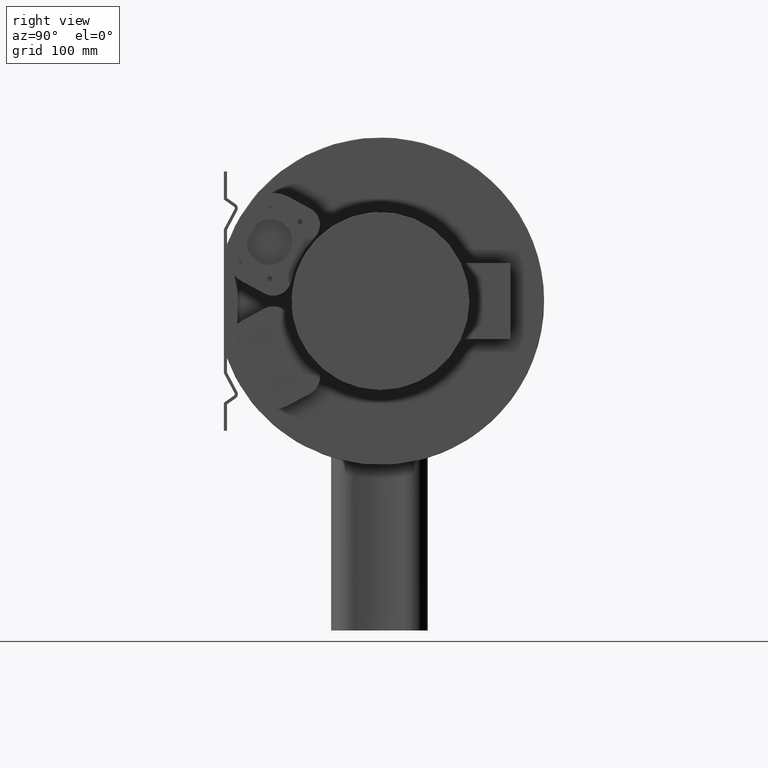
[diagram: clean part render]
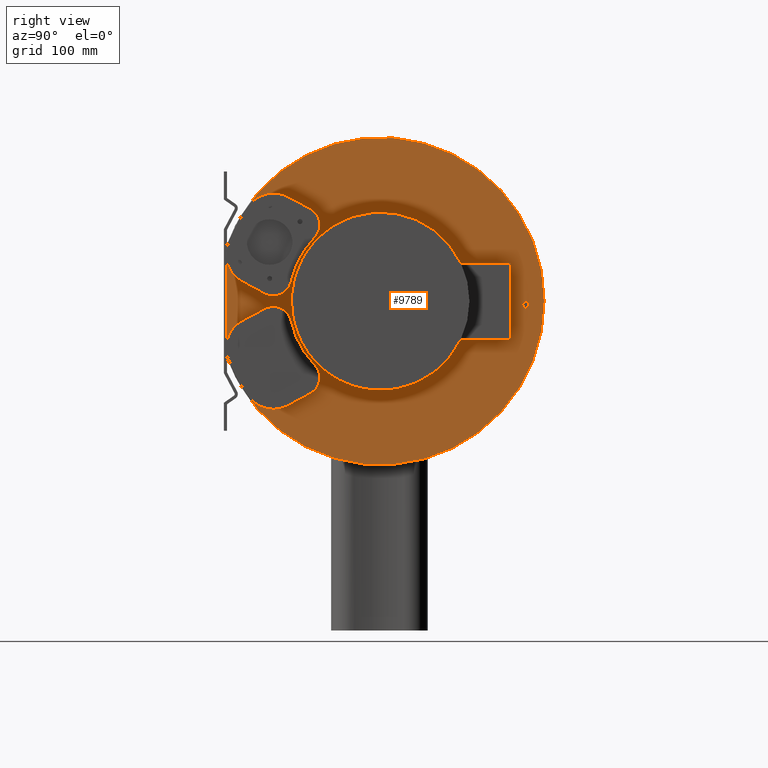
[diagram: same view with one face highlighted and labeled with its STEP entity id]
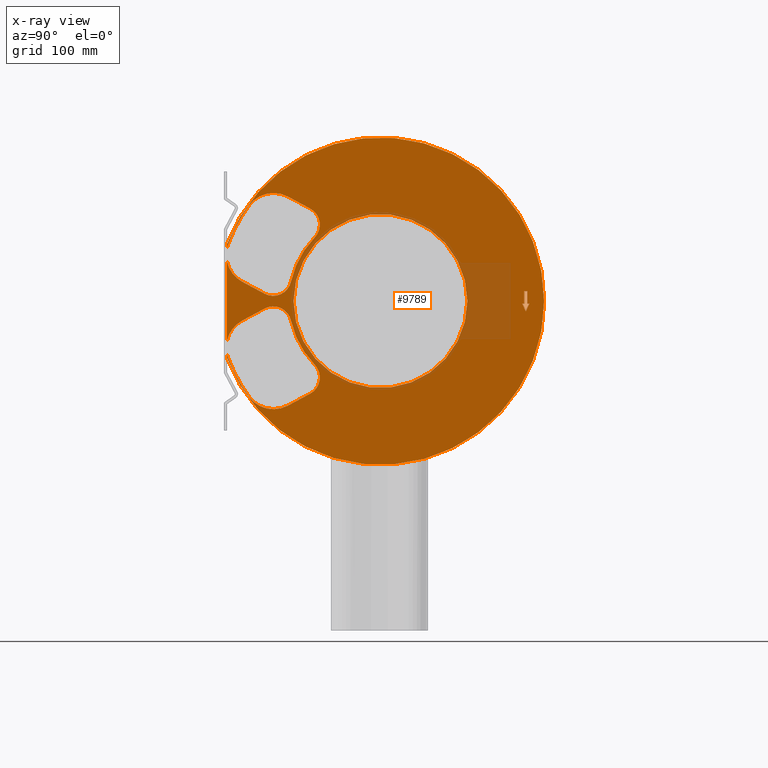
[diagram: x-ray of the same camera — body ghosted, the highlighted face saturated]
A machine part, right view. The second image highlights one B-rep face of the part: STEP entity #9789.
The next image is the same camera in x-ray: the body ghosted, the highlighted face saturated — about 10% of this face is hidden behind the body in this view.
In plain terms, the highlighted planar face has unit normal (1, 0, 0).
Its self-contained STEP definition (entity closure, byte-faithful):
#6342=CARTESIAN_POINT('',(155.0,141.5,-2.494225778216578));
#6343=VERTEX_POINT('',#6342);
#6350=CARTESIAN_POINT('',(155.0,139.5,-2.494225778216556));
#6351=VERTEX_POINT('',#6350);
#6352=CARTESIAN_POINT('',(155.0,139.5,-2.494225778216556));
#6353=DIRECTION('',(0.0,1.0,0.0));
#6354=VECTOR('',#6353,2.0);
#6355=LINE('',#6352,#6354);
#6356=EDGE_CURVE('',#6351,#6343,#6355,.T.);
#6380=CARTESIAN_POINT('',(155.0,141.5,10.000000000000007));
#6381=VERTEX_POINT('',#6380);
#6388=CARTESIAN_POINT('',(155.0,141.5,-2.494225778216578));
#6389=DIRECTION('',(0.0,0.0,1.0));
#6390=VECTOR('',#6389,12.494225778216585);
#6391=LINE('',#6388,#6390);
#6392=EDGE_CURVE('',#6343,#6381,#6391,.T.);
#6411=CARTESIAN_POINT('',(155.0,144.5,10.000000000000036));
#6412=VERTEX_POINT('',#6411);
#6419=CARTESIAN_POINT('',(155.0,141.5,10.000000000000005));
#6420=DIRECTION('',(0.0,1.0,0.0));
#6421=VECTOR('',#6420,3.0);
#6422=LINE('',#6419,#6421);
#6423=EDGE_CURVE('',#6381,#6412,#6422,.T.);
#6442=CARTESIAN_POINT('',(155.0,144.5,-2.494225778216564));
#6443=VERTEX_POINT('',#6442);
#6450=CARTESIAN_POINT('',(155.0,144.5,10.000000000000036));
#6451=DIRECTION('',(0.0,0.0,-1.0));
#6452=VECTOR('',#6451,12.494225778216599);
#6453=LINE('',#6450,#6452);
#6454=EDGE_CURVE('',#6412,#6443,#6453,.T.);
#6473=CARTESIAN_POINT('',(155.0,146.5,-2.494225778216564));
#6474=VERTEX_POINT('',#6473);
#6481=CARTESIAN_POINT('',(155.0,144.5,-2.494225778216564));
#6482=DIRECTION('',(0.0,1.0,0.0));
#6483=VECTOR('',#6482,2.0);
#6484=LINE('',#6481,#6483);
#6485=EDGE_CURVE('',#6443,#6474,#6484,.T.);
#6504=CARTESIAN_POINT('',(155.0,142.99999999999977,-9.999999999999989));
#6505=VERTEX_POINT('',#6504);
#6512=CARTESIAN_POINT('',(155.0,146.5,-2.494225778216562));
#6513=DIRECTION('',(0.0,-0.422618261740723,-0.906307787036639));
#6514=VECTOR('',#6513,8.281705541033814);
#6515=LINE('',#6512,#6514);
#6516=EDGE_CURVE('',#6474,#6505,#6515,.T.);
#6534=CARTESIAN_POINT('',(155.0,142.99999999999977,-9.999999999999991));
#6535=DIRECTION('',(0.0,-0.422618261740678,0.90630778703666));
#6536=VECTOR('',#6535,8.281705541033631);
#6537=LINE('',#6534,#6536);
#6538=EDGE_CURVE('',#6505,#6351,#6537,.T.);
#8478=CARTESIAN_POINT('',(155.0,-151.0,55.856960175075756));
#8479=VERTEX_POINT('',#8478);
#8501=CARTESIAN_POINT('',(155.0,-151.0,52.264140480517455));
#8502=VERTEX_POINT('',#8501);
#8509=CARTESIAN_POINT('',(155.0,-151.0,55.856960175075756));
#8510=DIRECTION('',(0.0,0.0,-1.0));
#8511=VECTOR('',#8510,3.592819694558294);
#8512=LINE('',#8509,#8511);
#8513=EDGE_CURVE('',#8479,#8502,#8512,.T.);
#8558=CARTESIAN_POINT('',(155.0,-151.0,-55.856960175075756));
#8559=VERTEX_POINT('',#8558);
#8560=CARTESIAN_POINT('',(155.0,0.0,0.0));
#8561=DIRECTION('',(1.0,0.0,0.0));
#8562=DIRECTION('',(0.0,1.0,0.0));
#8563=AXIS2_PLACEMENT_3D('',#8560,#8561,#8562);
#8564=CIRCLE('',#8563,161.0);
#8565=EDGE_CURVE('',#8559,#8479,#8564,.T.);
#8672=CARTESIAN_POINT('',(155.0,-151.0,-52.264140480517455));
#8673=VERTEX_POINT('',#8672);
#8674=CARTESIAN_POINT('',(155.0,-151.0,-52.264140480517462));
#8675=DIRECTION('',(0.0,0.0,-1.0));
#8676=VECTOR('',#8675,3.592819694558294);
#8677=LINE('',#8674,#8676);
#8678=EDGE_CURVE('',#8673,#8559,#8677,.T.);
#8696=CARTESIAN_POINT('',(155.0,-151.0,-38.805165045884088));
#8697=VERTEX_POINT('',#8696);
#8704=CARTESIAN_POINT('',(155.0,-151.0,38.805165045884088));
#8705=VERTEX_POINT('',#8704);
#8706=CARTESIAN_POINT('',(155.0,-151.0,38.805165045884095));
#8707=DIRECTION('',(0.0,0.0,-1.0));
#8708=VECTOR('',#8707,77.610330091768176);
#8709=LINE('',#8706,#8708);
#8710=EDGE_CURVE('',#8705,#8697,#8709,.T.);
#9137=CARTESIAN_POINT('',(155.0,-135.95948542204536,-19.105452723571752));
#9138=VERTEX_POINT('',#9137);
#9145=CARTESIAN_POINT('',(155.0,-121.76450795586838,-45.534652763200768));
#9146=DIRECTION('',(-1.0,0.0,0.0));
#9147=DIRECTION('',(0.0,0.473165915539233,-0.880973334654301));
#9148=AXIS2_PLACEMENT_3D('',#9145,#9146,#9147);
#9149=CIRCLE('',#9148,30.0);
#9150=EDGE_CURVE('',#8697,#9138,#9149,.T.);
#9171=CARTESIAN_POINT('',(155.0,-114.00232054262075,7.312380658688305));
#9172=VERTEX_POINT('',#9171);
#9179=CARTESIAN_POINT('',(155.0,-87.90444505242877,19.308250568721448));
#9180=VERTEX_POINT('',#9179);
#9181=CARTESIAN_POINT('',(155.0,-105.48533406291455,23.16990068246573));
#9182=DIRECTION('',(-1.0,0.0,0.0));
#9183=DIRECTION('',(0.0,-0.473165915539233,-0.880973334654301));
#9184=AXIS2_PLACEMENT_3D('',#9181,#9182,#9183);
#9185=CIRCLE('',#9184,17.999999999999996);
#9186=EDGE_CURVE('',#9180,#9172,#9185,.T.);
#9210=CARTESIAN_POINT('',(155.0,-135.95948542204536,19.105452723571752));
#9211=VERTEX_POINT('',#9210);
#9218=CARTESIAN_POINT('',(155.0,-114.00232054262074,7.312380658688312));
#9219=DIRECTION('',(0.0,-0.880973334654301,0.473165915539233));
#9220=VECTOR('',#9219,24.923756503981778);
#9221=LINE('',#9218,#9220);
#9222=EDGE_CURVE('',#9172,#9211,#9221,.T.);
#9234=CARTESIAN_POINT('',(155.0,-121.76450795586838,45.534652763200768));
#9235=DIRECTION('',(-1.0,0.0,0.0));
#9236=DIRECTION('',(0.0,-0.936650061198988,0.350266559716928));
#9237=AXIS2_PLACEMENT_3D('',#9234,#9235,#9236);
#9238=CIRCLE('',#9237,30.0);
#9239=EDGE_CURVE('',#9211,#8705,#9238,.T.);
#9251=CARTESIAN_POINT('',(155.0,-149.86400979183799,56.042649554708603));
#9252=VERTEX_POINT('',#9251);
#9259=CARTESIAN_POINT('',(155.0,-121.76450795586838,45.534652763200768));
#9260=DIRECTION('',(-1.0,0.0,0.0));
#9261=DIRECTION('',(0.0,-0.936650061198988,0.350266559716928));
#9262=AXIS2_PLACEMENT_3D('',#9259,#9260,#9261);
#9263=CIRCLE('',#9262,30.0);
#9264=EDGE_CURVE('',#8502,#9252,#9263,.T.);
#9285=CARTESIAN_POINT('',(155.0,-129.4814780455325,93.992270124432466));
#9286=VERTEX_POINT('',#9285);
#9293=CARTESIAN_POINT('',(155.0,0.0,0.0));
#9294=DIRECTION('',(-1.0,0.0,0.0));
#9295=DIRECTION('',(0.0,-0.809259237784578,0.587451688277703));
#9296=AXIS2_PLACEMENT_3D('',#9293,#9294,#9295);
#9297=CIRCLE('',#9296,160.0);
#9298=EDGE_CURVE('',#9252,#9286,#9297,.T.);
#9318=CARTESIAN_POINT('',(155.0,-91.008723445818191,102.79791951573043));
#9319=VERTEX_POINT('',#9318);
#9326=CARTESIAN_POINT('',(155.0,-105.20370091199518,76.368719476101376));
#9327=DIRECTION('',(-1.0,0.0,0.0));
#9328=DIRECTION('',(0.0,0.473165915539233,0.880973334654301));
#9329=AXIS2_PLACEMENT_3D('',#9326,#9327,#9328);
#9330=CIRCLE('',#9329,29.999999999999996);
#9331=EDGE_CURVE('',#9286,#9319,#9330,.T.);
#9350=CARTESIAN_POINT('',(155.0,-69.051558566393567,91.004847450846967));
#9351=VERTEX_POINT('',#9350);
#9358=CARTESIAN_POINT('',(155.0,-91.008723445818219,102.79791951573043));
#9359=DIRECTION('',(0.0,0.880973334654301,-0.473165915539233));
#9360=VECTOR('',#9359,24.923756503981778);
#9361=LINE('',#9358,#9360);
#9362=EDGE_CURVE('',#9319,#9351,#9361,.T.);
#9391=CARTESIAN_POINT('',(155.0,-64.640454205083131,62.62277285589127));
#9392=VERTEX_POINT('',#9391);
#9399=CARTESIAN_POINT('',(155.0,-77.568545046099771,75.147327427069541));
#9400=DIRECTION('',(-1.0,0.0,0.0));
#9401=DIRECTION('',(0.0,0.718227268945368,-0.695808587287681));
#9402=AXIS2_PLACEMENT_3D('',#9399,#9400,#9401);
#9403=CIRCLE('',#9402,17.999999999999996);
#9404=EDGE_CURVE('',#9351,#9392,#9403,.T.);
#9423=CARTESIAN_POINT('',(155.0,0.0,0.0));
#9424=DIRECTION('',(1.0,0.0,0.0));
#9425=DIRECTION('',(0.0,0.718227268945368,-0.695808587287681));
#9426=AXIS2_PLACEMENT_3D('',#9423,#9424,#9425);
#9427=CIRCLE('',#9426,90.0);
#9428=EDGE_CURVE('',#9392,#9180,#9427,.T.);
#9481=CARTESIAN_POINT('',(155.0,-64.640454205083131,-62.62277285589127));
#9482=VERTEX_POINT('',#9481);
#9489=CARTESIAN_POINT('',(155.0,-87.90444505242877,-19.308250568721448));
#9490=VERTEX_POINT('',#9489);
#9491=CARTESIAN_POINT('',(155.0,0.0,0.0));
#9492=DIRECTION('',(1.0,0.0,0.0));
#9493=DIRECTION('',(0.0,-0.976716056138097,-0.214536117430238));
#9494=AXIS2_PLACEMENT_3D('',#9491,#9492,#9493);
#9495=CIRCLE('',#9494,90.0);
#9496=EDGE_CURVE('',#9490,#9482,#9495,.T.);
#9521=CARTESIAN_POINT('',(155.0,-69.051558566393567,-91.004847450846967));
#9522=VERTEX_POINT('',#9521);
#9529=CARTESIAN_POINT('',(155.0,-77.568545046099771,-75.147327427069541));
#9530=DIRECTION('',(-1.0,0.0,0.0));
#9531=DIRECTION('',(0.0,-0.473165915539233,0.880973334654301));
#9532=AXIS2_PLACEMENT_3D('',#9529,#9530,#9531);
#9533=CIRCLE('',#9532,17.999999999999996);
#9534=EDGE_CURVE('',#9482,#9522,#9533,.T.);
#9553=CARTESIAN_POINT('',(155.0,-91.008723445818191,-102.79791951573043));
#9554=VERTEX_POINT('',#9553);
#9561=CARTESIAN_POINT('',(155.0,-69.051558566393567,-91.004847450846952));
#9562=DIRECTION('',(0.0,-0.880973334654301,-0.473165915539234));
#9563=VECTOR('',#9562,24.923756503981789);
#9564=LINE('',#9561,#9563);
#9565=EDGE_CURVE('',#9522,#9554,#9564,.T.);
#9585=CARTESIAN_POINT('',(155.0,-129.4814780455325,-93.992270124432466));
#9586=VERTEX_POINT('',#9585);
#9593=CARTESIAN_POINT('',(155.0,-105.20370091199518,-76.368719476101376));
#9594=DIRECTION('',(-1.0,0.0,0.0));
#9595=DIRECTION('',(0.0,0.809259237784578,0.587451688277703));
#9596=AXIS2_PLACEMENT_3D('',#9593,#9594,#9595);
#9597=CIRCLE('',#9596,30.000000000000004);
#9598=EDGE_CURVE('',#9554,#9586,#9597,.T.);
#9618=CARTESIAN_POINT('',(155.0,-149.86400979183799,-56.042649554708603));
#9619=VERTEX_POINT('',#9618);
#9626=CARTESIAN_POINT('',(155.0,0.0,0.0));
#9627=DIRECTION('',(-1.0,0.0,0.0));
#9628=DIRECTION('',(0.0,0.936650061198988,0.350266559716929));
#9629=AXIS2_PLACEMENT_3D('',#9626,#9627,#9628);
#9630=CIRCLE('',#9629,160.0);
#9631=EDGE_CURVE('',#9586,#9619,#9630,.T.);
#9643=CARTESIAN_POINT('',(155.0,-121.76450795586838,-45.534652763200768));
#9644=DIRECTION('',(-1.0,0.0,0.0));
#9645=DIRECTION('',(0.0,0.473165915539233,-0.880973334654301));
#9646=AXIS2_PLACEMENT_3D('',#9643,#9644,#9645);
#9647=CIRCLE('',#9646,30.0);
#9648=EDGE_CURVE('',#9619,#8673,#9647,.T.);
#9674=CARTESIAN_POINT('',(155.0,-114.00232054262075,-7.312380658688305));
#9675=VERTEX_POINT('',#9674);
#9682=CARTESIAN_POINT('',(155.0,-135.95948542204536,-19.105452723571759));
#9683=DIRECTION('',(0.0,0.880973334654301,0.473165915539233));
#9684=VECTOR('',#9683,24.923756503981735);
#9685=LINE('',#9682,#9684);
#9686=EDGE_CURVE('',#9138,#9675,#9685,.T.);
#9705=CARTESIAN_POINT('',(155.0,-105.48533406291455,-23.16990068246573));
#9706=DIRECTION('',(-1.0,0.0,0.0));
#9707=DIRECTION('',(0.0,-0.976716056138098,-0.214536117430238));
#9708=AXIS2_PLACEMENT_3D('',#9705,#9706,#9707);
#9709=CIRCLE('',#9708,18.0);
#9710=EDGE_CURVE('',#9675,#9490,#9709,.T.);
#9740=CARTESIAN_POINT('',(155.0,123.25000000000001,0.0));
#9741=DIRECTION('',(1.0,0.0,0.0));
#9742=DIRECTION('',(0.0,0.0,-1.0));
#9743=AXIS2_PLACEMENT_3D('',#9740,#9741,#9742);
#9744=PLANE('',#9743);
#9745=ORIENTED_EDGE('',*,*,#8710,.T.);
#9746=ORIENTED_EDGE('',*,*,#9150,.T.);
#9747=ORIENTED_EDGE('',*,*,#9686,.T.);
#9748=ORIENTED_EDGE('',*,*,#9710,.T.);
#9749=ORIENTED_EDGE('',*,*,#9496,.T.);
#9750=ORIENTED_EDGE('',*,*,#9534,.T.);
#9751=ORIENTED_EDGE('',*,*,#9565,.T.);
#9752=ORIENTED_EDGE('',*,*,#9598,.T.);
#9753=ORIENTED_EDGE('',*,*,#9631,.T.);
#9754=ORIENTED_EDGE('',*,*,#9648,.T.);
#9755=ORIENTED_EDGE('',*,*,#8678,.T.);
#9756=ORIENTED_EDGE('',*,*,#8565,.T.);
#9757=ORIENTED_EDGE('',*,*,#8513,.T.);
#9758=ORIENTED_EDGE('',*,*,#9264,.T.);
#9759=ORIENTED_EDGE('',*,*,#9298,.T.);
#9760=ORIENTED_EDGE('',*,*,#9331,.T.);
#9761=ORIENTED_EDGE('',*,*,#9362,.T.);
#9762=ORIENTED_EDGE('',*,*,#9404,.T.);
#9763=ORIENTED_EDGE('',*,*,#9428,.T.);
#9764=ORIENTED_EDGE('',*,*,#9186,.T.);
#9765=ORIENTED_EDGE('',*,*,#9222,.T.);
#9766=ORIENTED_EDGE('',*,*,#9239,.T.);
#9767=EDGE_LOOP('',(#9745,#9746,#9747,#9748,#9749,#9750,#9751,#9752,#9753,#9754,#9755,#9756,#9757,#9758,#9759,#9760,#9761,#9762,#9763,#9764,#9765,#9766));
#9768=FACE_OUTER_BOUND('',#9767,.T.);
#9769=ORIENTED_EDGE('',*,*,#6356,.T.);
#9770=ORIENTED_EDGE('',*,*,#6392,.T.);
#9771=ORIENTED_EDGE('',*,*,#6423,.T.);
#9772=ORIENTED_EDGE('',*,*,#6454,.T.);
#9773=ORIENTED_EDGE('',*,*,#6485,.T.);
#9774=ORIENTED_EDGE('',*,*,#6516,.T.);
#9775=ORIENTED_EDGE('',*,*,#6538,.T.);
#9776=EDGE_LOOP('',(#9769,#9770,#9771,#9772,#9773,#9774,#9775));
#9777=FACE_BOUND('',#9776,.T.);
#9778=CARTESIAN_POINT('',(155.0,85.5,0.0));
#9779=VERTEX_POINT('',#9778);
#9780=CARTESIAN_POINT('',(155.0,0.0,0.0));
#9781=DIRECTION('',(1.0,0.0,0.0));
#9782=DIRECTION('',(0.0,1.0,0.0));
#9783=AXIS2_PLACEMENT_3D('',#9780,#9781,#9782);
#9784=CIRCLE('',#9783,85.5);
#9785=EDGE_CURVE('',#9779,#9779,#9784,.T.);
#9786=ORIENTED_EDGE('',*,*,#9785,.F.);
#9787=EDGE_LOOP('',(#9786));
#9788=FACE_BOUND('',#9787,.T.);
#9789=ADVANCED_FACE('',(#9768,#9777,#9788),#9744,.T.);